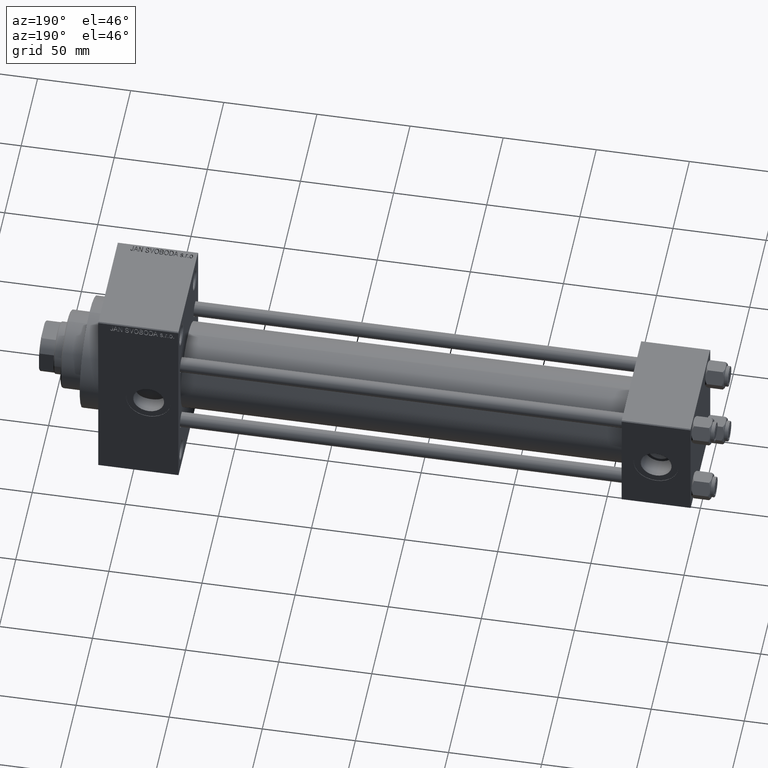
[diagram: clean part render]
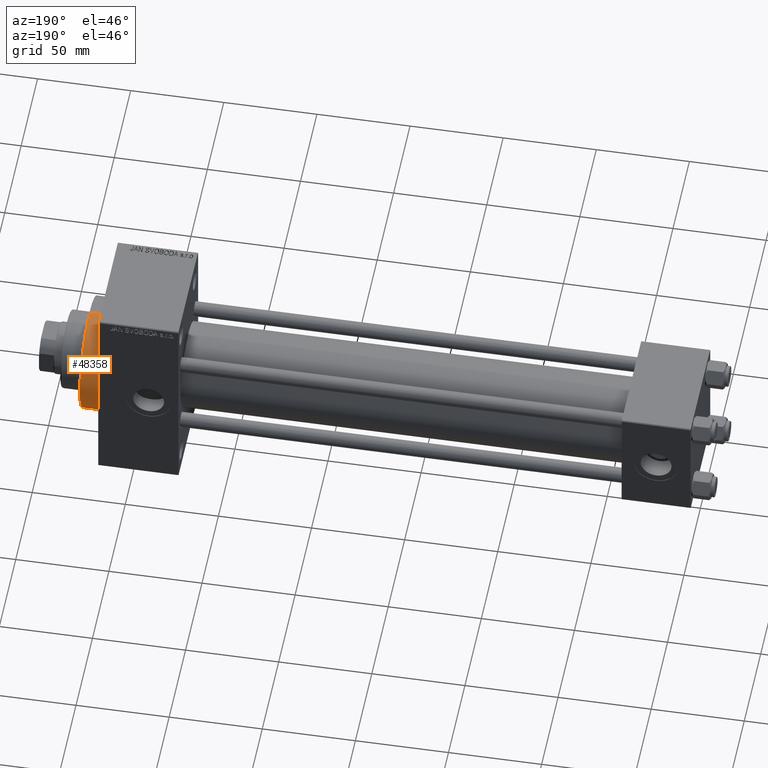
[diagram: same view with one face highlighted and labeled with its STEP entity id]
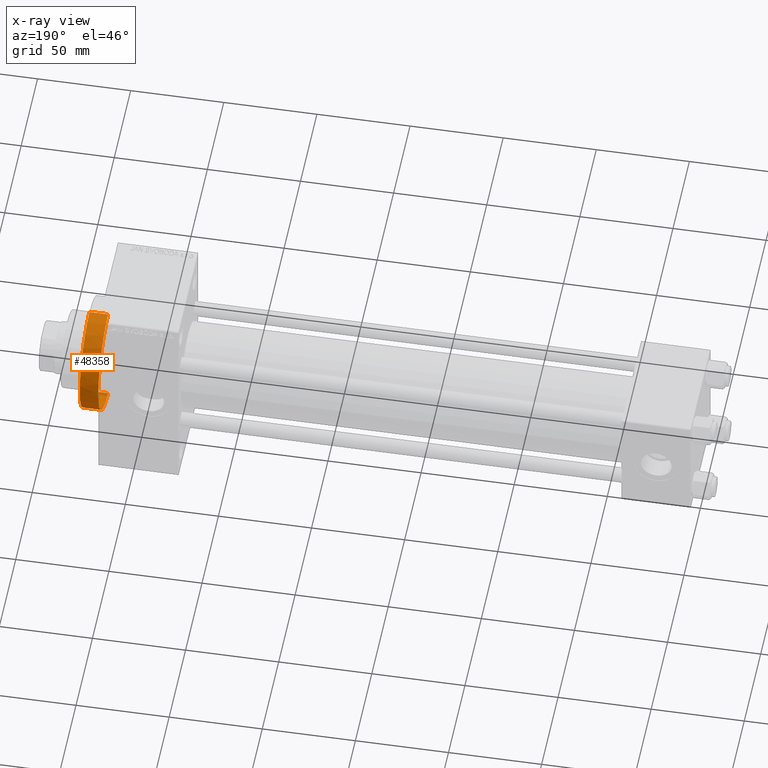
[diagram: x-ray of the same camera — body ghosted, the highlighted face saturated]
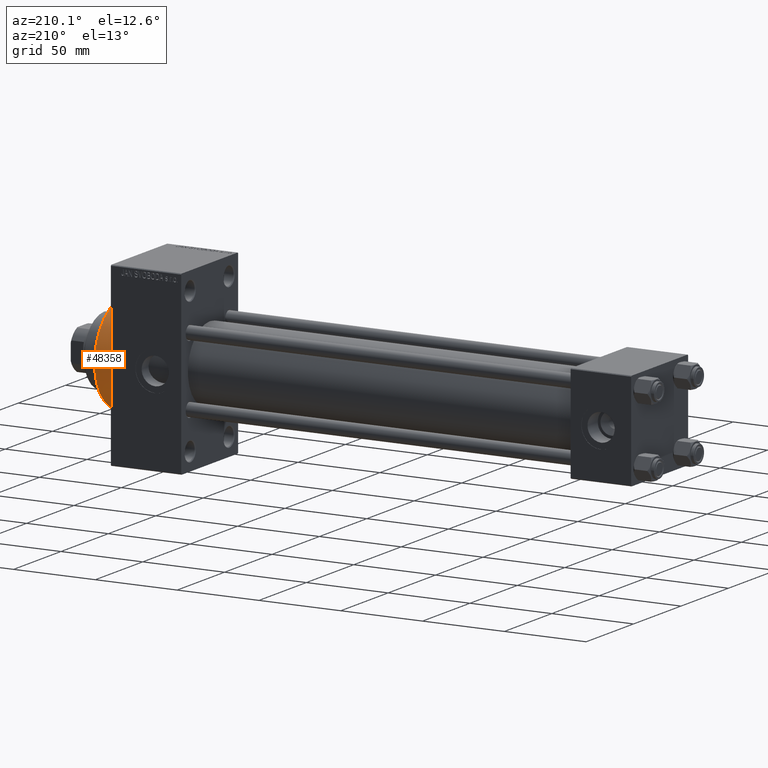
[diagram: same view with one face highlighted and labeled with its STEP entity id]
A machine part, auxiliary view. The second image highlights one B-rep face of the part: STEP entity #48358.
The next image is the same camera in x-ray: the body ghosted, the highlighted face saturated — about 2% of this face is hidden behind the body in this view.
A second angle (auxiliary view) of the same face is appended — the face is thin or edge-on in the first view.
In plain terms, the highlighted cylindrical surface (partial cylindrical patch) has radius 30 mm, axis along (-1, -0, -0).
Its self-contained STEP definition (entity closure, byte-faithful):
#557 = DIRECTION ( 'NONE',  ( 0.000000000000000000, 0.000000000000000000, 1.000000000000000000 ) ) ;
#1673 = VECTOR ( 'NONE', #6521, 1000.000000000000000 ) ;
#2086 = CARTESIAN_POINT ( 'NONE',  ( 327.9999999999999432, 0.000000000000000000, 30.00000000000000000 ) ) ;
#3267 = AXIS2_PLACEMENT_3D ( 'NONE', #45844, #26131, #34119 ) ;
#3553 = DIRECTION ( 'NONE',  ( -1.000000000000000000, -0.000000000000000000, -0.000000000000000000 ) ) ;
#5599 = EDGE_CURVE ( 'NONE', #31510, #24014, #35892, .T. ) ;
#6521 = DIRECTION ( 'NONE',  ( -1.000000000000000000, -0.000000000000000000, -0.000000000000000000 ) ) ;
#7284 = FACE_OUTER_BOUND ( 'NONE', #37539, .T. ) ;
#7408 = CARTESIAN_POINT ( 'NONE',  ( 327.9999999999999432, 3.673940397442059178E-15, -30.00000000000000000 ) ) ;
#7920 = CARTESIAN_POINT ( 'NONE',  ( 317.9999999999999432, 0.000000000000000000, 0.000000000000000000 ) ) ;
#8047 = DIRECTION ( 'NONE',  ( 1.000000000000000000, 0.000000000000000000, 0.000000000000000000 ) ) ;
#8296 = CARTESIAN_POINT ( 'NONE',  ( 317.9999999999999432, 0.000000000000000000, 0.000000000000000000 ) ) ;
#8636 = EDGE_CURVE ( 'NONE', #47384, #39308, #46254, .T. ) ;
#9735 = VECTOR ( 'NONE', #47680, 1000.000000000000000 ) ;
#10435 = AXIS2_PLACEMENT_3D ( 'NONE', #8296, #8047, #12038 ) ;
#11418 = CARTESIAN_POINT ( 'NONE',  ( 317.9999999999999432, 0.000000000000000000, 30.00000000000000000 ) ) ;
#11445 = ORIENTED_EDGE ( 'NONE', *, *, #18923, .T. ) ;
#12038 = DIRECTION ( 'NONE',  ( 0.000000000000000000, 0.000000000000000000, -1.000000000000000000 ) ) ;
#15853 = ORIENTED_EDGE ( 'NONE', *, *, #8636, .F. ) ;
#17742 = CARTESIAN_POINT ( 'NONE',  ( 327.9999999999999432, 3.673940397442059178E-15, -30.00000000000000000 ) ) ;
#17783 = CARTESIAN_POINT ( 'NONE',  ( 327.9999999999999432, 0.000000000000000000, 30.00000000000000000 ) ) ;
#18923 = EDGE_CURVE ( 'NONE', #24014, #24739, #30250, .T. ) ;
#20404 = EDGE_CURVE ( 'NONE', #47384, #31510, #28932, .T. ) ;
#22487 = CYLINDRICAL_SURFACE ( 'NONE', #42254, 30.00000000000000000 ) ;
#24014 = VERTEX_POINT ( 'NONE', #42973 ) ;
#24098 = EDGE_CURVE ( 'NONE', #39308, #24739, #36972, .T. ) ;
#24739 = VERTEX_POINT ( 'NONE', #11418 ) ;
#25371 = ORIENTED_EDGE ( 'NONE', *, *, #24098, .F. ) ;
#26131 = DIRECTION ( 'NONE',  ( 1.000000000000000000, 0.000000000000000000, 0.000000000000000000 ) ) ;
#27077 = AXIS2_PLACEMENT_3D ( 'NONE', #7920, #46550, #34831 ) ;
#27303 = CARTESIAN_POINT ( 'NONE',  ( 317.9999999999999432, 3.673940397442059178E-15, -30.00000000000000000 ) ) ;
#28932 = LINE ( 'NONE', #17742, #1673 ) ;
#30250 = CIRCLE ( 'NONE', #27077, 30.00000000000000000 ) ;
#31510 = VERTEX_POINT ( 'NONE', #27303 ) ;
#34119 = DIRECTION ( 'NONE',  ( 0.000000000000000000, 0.000000000000000000, -1.000000000000000000 ) ) ;
#34831 = DIRECTION ( 'NONE',  ( 0.000000000000000000, 0.000000000000000000, -1.000000000000000000 ) ) ;
#35892 = CIRCLE ( 'NONE', #10435, 30.00000000000000000 ) ;
#36972 = LINE ( 'NONE', #2086, #9735 ) ;
#37539 = EDGE_LOOP ( 'NONE', ( #15853, #39029, #48360, #11445, #25371 ) ) ;
#37694 = CARTESIAN_POINT ( 'NONE',  ( 327.9999999999999432, 0.000000000000000000, 0.000000000000000000 ) ) ;
#39029 = ORIENTED_EDGE ( 'NONE', *, *, #20404, .T. ) ;
#39308 = VERTEX_POINT ( 'NONE', #17783 ) ;
#42254 = AXIS2_PLACEMENT_3D ( 'NONE', #37694, #3553, #557 ) ;
#42973 = CARTESIAN_POINT ( 'NONE',  ( 317.9999999999999432, 30.00000000000000000, 0.000000000000000000 ) ) ;
#45844 = CARTESIAN_POINT ( 'NONE',  ( 327.9999999999999432, 0.000000000000000000, 0.000000000000000000 ) ) ;
#46254 = CIRCLE ( 'NONE', #3267, 30.00000000000000000 ) ;
#46550 = DIRECTION ( 'NONE',  ( 1.000000000000000000, 0.000000000000000000, 0.000000000000000000 ) ) ;
#47384 = VERTEX_POINT ( 'NONE', #7408 ) ;
#47680 = DIRECTION ( 'NONE',  ( -1.000000000000000000, -0.000000000000000000, -0.000000000000000000 ) ) ;
#48358 = ADVANCED_FACE ( 'NONE', ( #7284 ), #22487, .T. ) ;
#48360 = ORIENTED_EDGE ( 'NONE', *, *, #5599, .T. ) ;